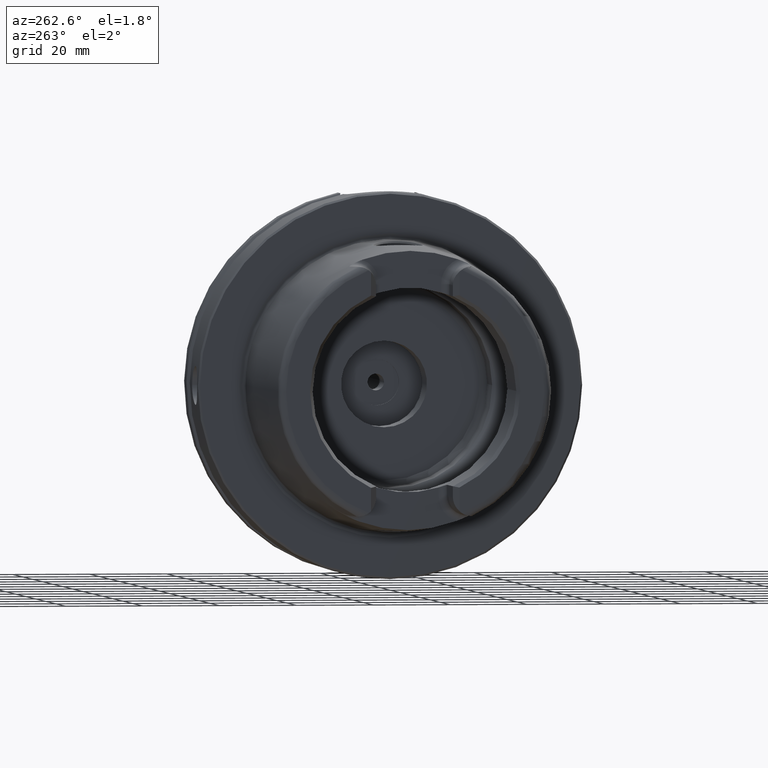
[diagram: clean part render]
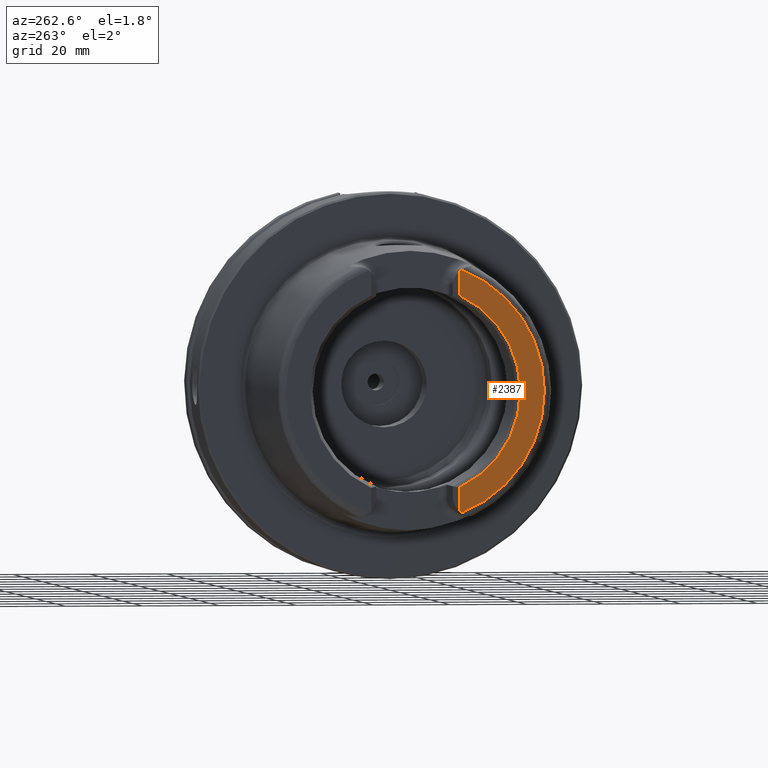
[diagram: same view with one face highlighted and labeled with its STEP entity id]
A machine part, auxiliary view. The second image highlights one B-rep face of the part: STEP entity #2387.
In plain terms, the highlighted planar face has unit normal (-1, 0, 0).
Its self-contained STEP definition (entity closure, byte-faithful):
#137=PLANE('',#2704);
#193=LINE('',#3780,#305);
#200=LINE('',#3838,#312);
#305=VECTOR('',#3026,10.);
#312=VECTOR('',#3051,10.);
#538=FACE_OUTER_BOUND('',#682,.T.);
#682=EDGE_LOOP('',(#2131,#2132,#2133,#2134,#2135,#2136));
#790=CIRCLE('',#2557,4.88);
#791=CIRCLE('',#2564,4.88);
#862=CIRCLE('',#2702,33.6001839277785);
#863=CIRCLE('',#2705,27.3660254037844);
#973=VERTEX_POINT('',#3777);
#974=VERTEX_POINT('',#3779);
#981=VERTEX_POINT('',#3812);
#983=VERTEX_POINT('',#3831);
#986=VERTEX_POINT('',#3836);
#989=VERTEX_POINT('',#3846);
#1245=EDGE_CURVE('',#973,#974,#193,.T.);
#1254=EDGE_CURVE('',#973,#981,#790,.T.);
#1260=EDGE_CURVE('',#986,#983,#200,.T.);
#1264=EDGE_CURVE('',#989,#983,#791,.T.);
#1464=EDGE_CURVE('',#989,#981,#862,.T.);
#1465=EDGE_CURVE('',#974,#986,#863,.T.);
#2131=ORIENTED_EDGE('',*,*,#1245,.F.);
#2132=ORIENTED_EDGE('',*,*,#1254,.T.);
#2133=ORIENTED_EDGE('',*,*,#1464,.F.);
#2134=ORIENTED_EDGE('',*,*,#1264,.T.);
#2135=ORIENTED_EDGE('',*,*,#1260,.F.);
#2136=ORIENTED_EDGE('',*,*,#1465,.F.);
#2387=ADVANCED_FACE('',(#538),#137,.T.);
#2557=AXIS2_PLACEMENT_3D('',#3825,#3038,#3039);
#2564=AXIS2_PLACEMENT_3D('',#3847,#3059,#3060);
#2702=AXIS2_PLACEMENT_3D('',#5061,#3398,#3399);
#2704=AXIS2_PLACEMENT_3D('',#5063,#3402,#3403);
#2705=AXIS2_PLACEMENT_3D('',#5064,#3404,#3405);
#3026=DIRECTION('',(0.,0.,1.));
#3038=DIRECTION('center_axis',(-1.,0.,0.));
#3039=DIRECTION('ref_axis',(0.,-1.,0.));
#3051=DIRECTION('',(0.,0.,1.));
#3059=DIRECTION('center_axis',(-1.,0.,0.));
#3060=DIRECTION('ref_axis',(0.,0.477884921181369,-0.878422450821629));
#3398=DIRECTION('center_axis',(1.,0.,0.));
#3399=DIRECTION('ref_axis',(0.,0.,-1.));
#3402=DIRECTION('center_axis',(-1.,0.,0.));
#3403=DIRECTION('ref_axis',(0.,0.,1.));
#3404=DIRECTION('center_axis',(-1.,0.,0.));
#3405=DIRECTION('ref_axis',(0.,-1.,0.));
#3777=CARTESIAN_POINT('',(-50.,-11.51,-30.8899431813596));
#3779=CARTESIAN_POINT('',(-50.,-11.51,-24.8277918148307));
#3780=CARTESIAN_POINT('',(-50.,-11.51,-13.685));
#3812=CARTESIAN_POINT('',(-50.,-12.0743049948301,-31.355757348091));
#3825=CARTESIAN_POINT('Origin',(-50.,-14.89,-27.37));
#3831=CARTESIAN_POINT('',(-50.,-11.51,30.8899431813596));
#3836=CARTESIAN_POINT('',(-50.,-11.51,24.8277918148307));
#3838=CARTESIAN_POINT('',(-50.,-11.51,9.));
#3846=CARTESIAN_POINT('',(-50.,-12.0743049948301,31.355757348091));
#3847=CARTESIAN_POINT('Origin',(-50.,-14.89,27.37));
#5061=CARTESIAN_POINT('Origin',(-50.,0.,0.));
#5063=CARTESIAN_POINT('Origin',(-50.,33.6001839277785,0.));
#5064=CARTESIAN_POINT('Origin',(-50.,0.,0.));